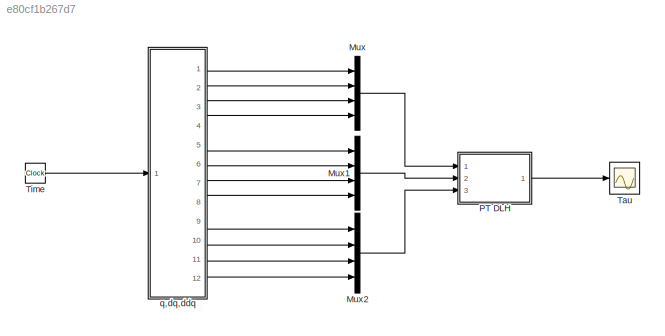
MODEL slx_e80cf1b267d7
KIND model
CONFIG AbsTol = auto
CONFIG EnableMultiTasking = off
CONFIG FixedStep = auto
CONFIG MaxStep = auto
CONFIG MinStep = auto
CONFIG RelTol = 1e-3
CONFIG SampleTimeConstraint = Unconstrained
CONFIG Solver = VariableStepAuto
CONFIG SolverName = VariableStepAuto
CONFIG StartTime = 0.0
CONFIG StopTime = 10.0
BLOCK [Mux] Mux
  DisplayOption = bar
  Ports = [4, 1]
BLOCK [Mux] Mux1
  DisplayOption = bar
  Ports = [4, 1]
BLOCK [Mux] Mux2
  DisplayOption = bar
  Ports = [4, 1]
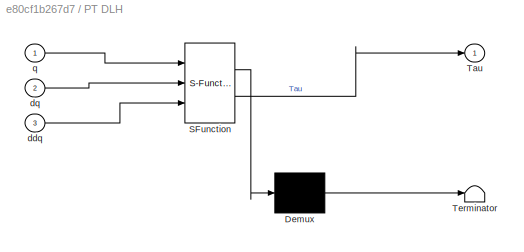
BLOCK [SubSystem] PT DLH 
  ErrorFcn = Stateflow.Translate.translate
  PermitHierarchicalResolution = ExplicitOnly
  Ports = [3, 1]
  RequestExecContextInheritance = off
  SFBlockType = MATLAB Function
  TreatAsAtomicUnit = on
BLOCK [Demux] PT DLH / Demux 
  Outputs = 1
  Ports = [1, 1]
BLOCK [S-Function] PT DLH / SFunction 
  EnableBusSupport = on
  FunctionName = sf_sfun
  PortCounts = [3 2]
  Ports = [3, 2]
  SFcnIsStateOwnerBlock = off
  SFunctionDeploymentMode = off
  Tag = Stateflow S-Function 1
BLOCK [Terminator] PT DLH / Terminator 
BLOCK [Outport] PT DLH /Tau
BLOCK [Inport] PT DLH /ddq
  Port = 3
BLOCK [Inport] PT DLH /dq
  Port = 2
BLOCK [Inport] PT DLH /q
BLOCK [Scope] Tau
  Floating = off
  NumInputPorts = 1
  Ports = [1]
  ScopeSpecificationString = Simulink.scopes.TimeScopeBlockCfg('CurrentConfiguration', extmgr.ConfigurationSet(extmgr.Configuration('Core','General UI',true,'FigureColor',[0.941176470588235 0.941176470588235 0.941176470588235]),extmgr.Configuration('Core','Source UI',true),extmgr.Configuration('Sources','WiredSimulink',true),extmgr.Configuration('Visuals','Time Domain',true,'SerializedDisplays',{struct('MinYLimReal','-52.7845...<+1937ch>
BLOCK [Clock] Time
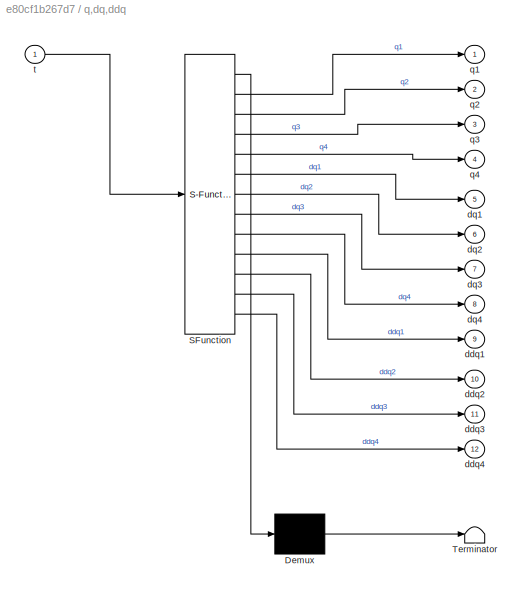
BLOCK [SubSystem] q,dq,ddq
  ErrorFcn = Stateflow.Translate.translate
  PermitHierarchicalResolution = ExplicitOnly
  Ports = [1, 12]
  RequestExecContextInheritance = off
  SFBlockType = MATLAB Function
  TreatAsAtomicUnit = on
BLOCK [Demux] q,dq,ddq/ Demux 
  Outputs = 1
  Ports = [1, 1]
BLOCK [S-Function] q,dq,ddq/ SFunction 
  EnableBusSupport = on
  FunctionName = sf_sfun
  PortCounts = [1 13]
  Ports = [1, 13]
  SFcnIsStateOwnerBlock = off
  SFunctionDeploymentMode = off
  Tag = Stateflow S-Function 2
BLOCK [Terminator] q,dq,ddq/ Terminator 
BLOCK [Outport] q,dq,ddq/ddq1
  Port = 9
BLOCK [Outport] q,dq,ddq/ddq2
  Port = 10
BLOCK [Outport] q,dq,ddq/ddq3
  Port = 11
BLOCK [Outport] q,dq,ddq/ddq4
  Port = 12
BLOCK [Outport] q,dq,ddq/dq1
  Port = 5
BLOCK [Outport] q,dq,ddq/dq2
  Port = 6
BLOCK [Outport] q,dq,ddq/dq3
  Port = 7
BLOCK [Outport] q,dq,ddq/dq4
  Port = 8
BLOCK [Outport] q,dq,ddq/q1
BLOCK [Outport] q,dq,ddq/q2
  Port = 2
BLOCK [Outport] q,dq,ddq/q3
  Port = 3
BLOCK [Outport] q,dq,ddq/q4
  Port = 4
BLOCK [Inport] q,dq,ddq/t
LINE Mux1:1 -> PT DLH :2
LINE Mux2:1 -> PT DLH :3
LINE Mux:1 -> PT DLH :1
LINE PT DLH :1 -> Tau:1
LINE Time:1 -> q,dq,ddq:1
LINE q,dq,ddq:1 -> Mux:1
LINE q,dq,ddq:10 -> Mux2:2
LINE q,dq,ddq:11 -> Mux2:3
LINE q,dq,ddq:12 -> Mux2:4
LINE q,dq,ddq:2 -> Mux:2
LINE q,dq,ddq:3 -> Mux:3
LINE q,dq,ddq:4 -> Mux:4
LINE q,dq,ddq:5 -> Mux1:1
LINE q,dq,ddq:6 -> Mux1:2
LINE q,dq,ddq:7 -> Mux1:3
LINE q,dq,ddq:8 -> Mux1:4
LINE q,dq,ddq:9 -> Mux2:1
CHART PT DLH  states=1 transitions=1
  STATE_LABEL 'eML_blk_kernel()'
  STATE_LABEL 'SCRIPT:\nfunction Tau = fcn(q,dq,ddq)\n\n[L1, L2, L3, L4,L0,m1,m2,m3,m4,I1x,I1y,I1z,I2x,I2y,I2z,I3x,I3y,I3z,I4x,I4y,I4z]=Parameters();\n\nM=zeros(4,4);\nM(1,1)= m1 + m2 + m3 + m4;\nM(1,2)= ((-0.3e1 * m4 * L4 * cos(q(4)) - 0.3e1 * L3 * (m3 + 0.2e1 / 0.3e1 * m4)) * cos(q(3)) + 0.3e1 * sin(q(3)) * sin(q(4)) * L4 * m4 - 0.3e1 * L2 * (m2 + 0.2e1 / 0.3e1 * m3 + 0.2e1 / 0.3e1 * m4)) * cos(q(2)) / 0.2e1 + 0.3e1 ...<+3608ch>'
CHART q,dq,ddq states=1 transitions=1
  STATE_LABEL 'eML_blk_kernel()'
  STATE_LABEL 'SCRIPT:\nfunction [q1,q2,q3,q4,dq1,dq2,dq3,dq4,ddq1,ddq2,ddq3,ddq4] = fcn(t)\n\nq1=2*sin(t);\nq2=2*cos(t);\nq3=-2*sin(t);\nq4=-2*cos(t);\n\n\ndq1=2*cos(t);\ndq2=-2*sin(t);\ndq3=-2*cos(t);\ndq4=2*sin(t);\n\nddq1=-2*sin(t);\nddq2=-2*cos(t);\nddq3=2*sin(t);\nddq4=2*cos(t);'
CHART  states=0 transitions=0
CHART  states=0 transitions=0
